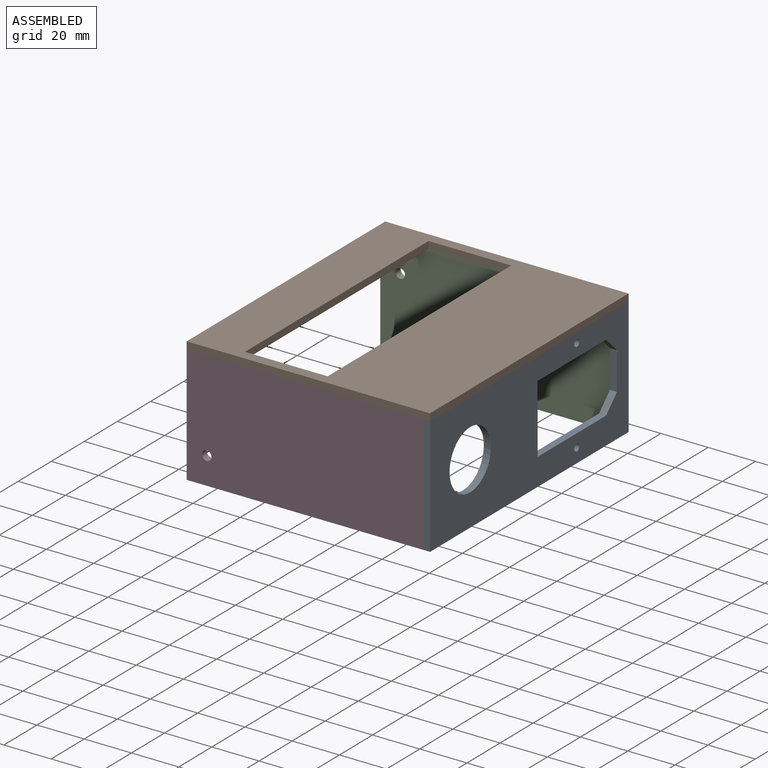
[diagram: assembled view]
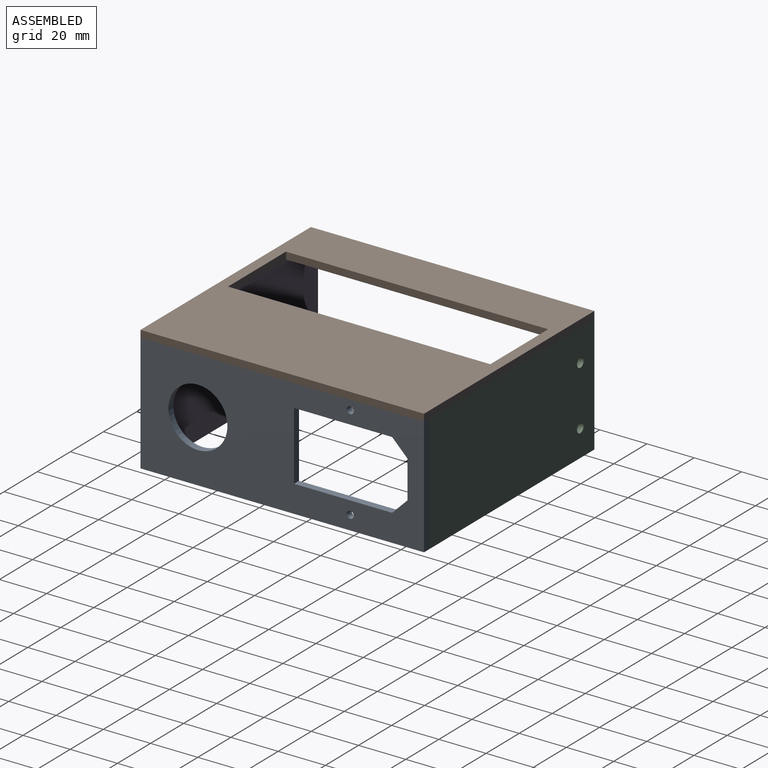
[diagram: assembled view, second angle]
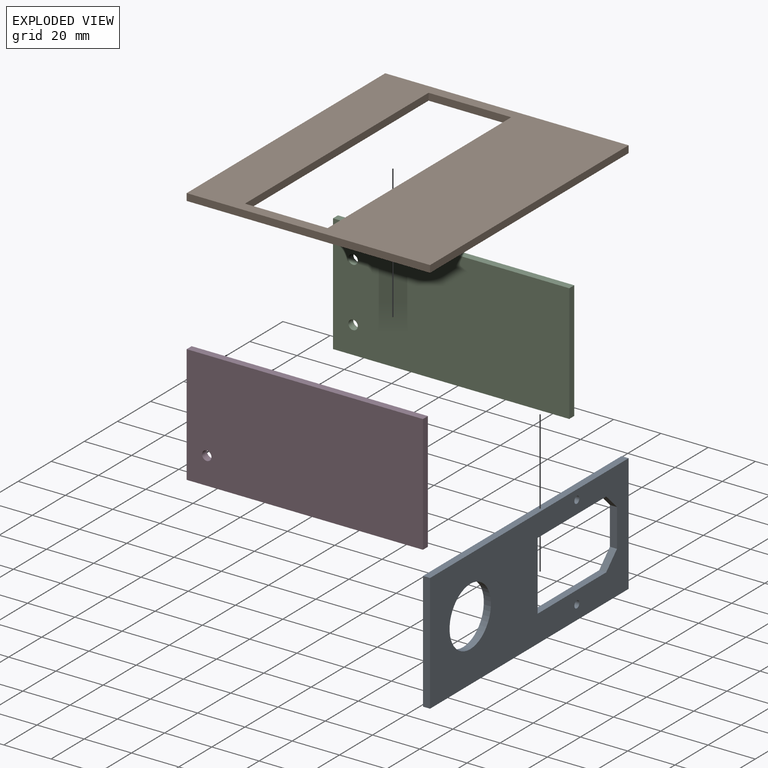
[diagram: exploded view]
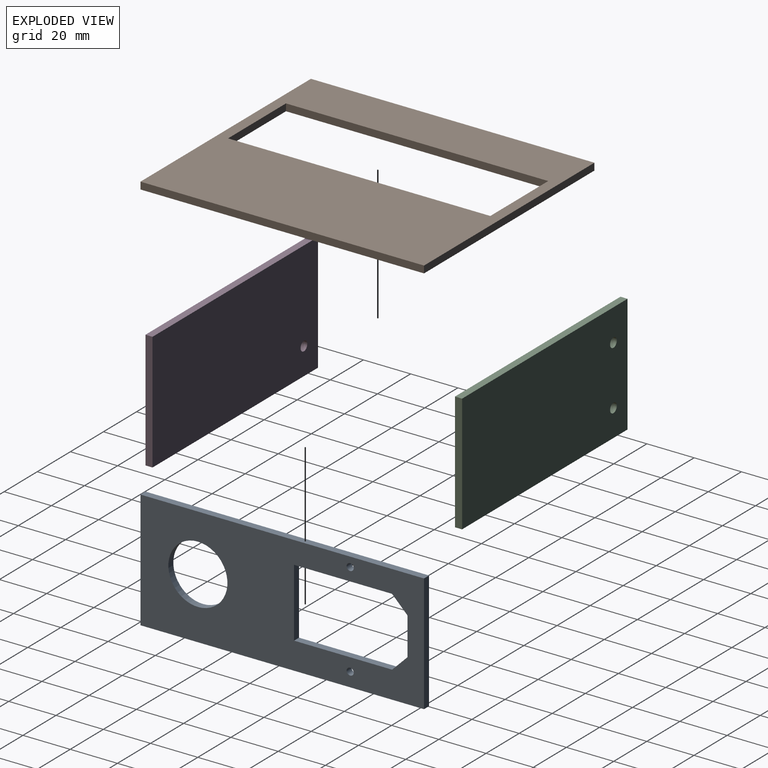
[diagram: exploded view, second angle]
ASSEMBLY  parts=4 mates=3
PART A: 15 faces, bbox 120x3x50 mm
  f0: plane 120x3mm, normal (0,0,1), area 360mm2, adj f1,f12,f13,f14
  f1: plane 50x3mm, normal (-1,0,0), area 150mm2, adj f0,f2,f13,f14
  f2: plane 120x3mm, normal (0,0,-1), area 360mm2, adj f1,f12,f13,f14
  f3: plane 29x3mm, normal (1,0,0), area 87mm2, adj f4,f8,f13,f14
  f4: plane 41.5x3mm, normal (0,0,-1), area 124.5mm2, adj f3,f5,f13,f14
  f5: plane 6.5x6.5mm, normal (-0.71,0,-0.71), area 27.6mm2, adj f4,f6,f13,f14
  f6: plane 16x3mm, normal (-1,0,0), area 48mm2, adj f5,f7,f13,f14
  f7: plane 6.5x6.5mm, normal (-0.71,0,0.71), area 27.6mm2, adj f6,f8,f13,f14
  f8: plane 41.5x3mm, normal (0,0,1), area 124.5mm2, adj f3,f7,f13,f14
  f9: cylinder r=12.5mm len=25mm, axis (0,1,0), area 235.6mm2, adj f13,f14
  f10: cylinder r=1.5mm len=3mm, axis (0,1,0), area 28.3mm2, adj f13,f14
  f11: cylinder r=1.5mm len=3mm, axis (0,1,0), area 28.3mm2, adj f13,f14
  f12: plane 50x3mm, normal (1,0,0), area 150mm2, adj f0,f2,f13,f14
  f13: plane 120x50mm, normal (0,-1,0), area 4145.2mm2, adj f0,f1,f2,f3,f4,f5,f6,f7
  f14: plane 120x50mm, normal (0,1,0), area 4145.2mm2, adj f0,f1,f2,f3,f4,f5,f6,f7
PART B: 10 faces, bbox 120x3x103 mm
  f0: plane 120x3mm, normal (0,0,1), area 360mm2, adj f1,f7,f8,f9
  f1: plane 103x3mm, normal (-1,0,0), area 309mm2, adj f0,f2,f8,f9
  f2: plane 120x3mm, normal (0,0,-1), area 360mm2, adj f1,f7,f8,f9
  f3: plane 35x3mm, normal (1,0,0), area 105mm2, adj f4,f6,f8,f9
  f4: plane 111x3mm, normal (0,0,-1), area 333mm2, adj f3,f5,f8,f9
  f5: plane 35x3mm, normal (-1,0,0), area 105mm2, adj f4,f6,f8,f9
  f6: plane 111x3mm, normal (0,0,1), area 333mm2, adj f3,f5,f8,f9
  f7: plane 103x3mm, normal (1,0,0), area 309mm2, adj f0,f2,f8,f9
  f8: plane 120x103mm, normal (0,-1,0), area 8475mm2, adj f0,f1,f2,f3,f4,f5,f6,f7
  f9: plane 120x103mm, normal (0,1,0), area 8475mm2, adj f0,f1,f2,f3,f4,f5,f6,f7
PART C: 8 faces, bbox 3x100x50 mm
  f0: plane 100x3mm, normal (0,0,1), area 300mm2, adj f1,f5,f6,f7
  f1: plane 50x3mm, normal (0,-1,0), area 150mm2, adj f0,f2,f6,f7
  f2: plane 100x3mm, normal (0,0,-1), area 300mm2, adj f1,f5,f6,f7
  f3: cylinder r=2mm len=4mm, axis (-1,0,0), area 37.7mm2, adj f6,f7
  f4: cylinder r=2mm len=4mm, axis (-1,0,0), area 37.7mm2, adj f6,f7
  f5: plane 50x3mm, normal (0,1,0), area 150mm2, adj f0,f2,f6,f7
  f6: plane 100x50mm, normal (1,0,0), area 4974.9mm2, adj f0,f1,f2,f3,f4,f5
  f7: plane 100x50mm, normal (-1,0,0), area 4974.9mm2, adj f0,f1,f2,f3,f4,f5
PART D: 7 faces, bbox 100x3x50 mm
  f0: plane 100x3mm, normal (0,0,1), area 300mm2, adj f1,f4,f5,f6
  f1: plane 50x3mm, normal (-1,0,0), area 150mm2, adj f0,f2,f5,f6
  f2: plane 100x3mm, normal (0,0,-1), area 300mm2, adj f1,f4,f5,f6
  f3: cylinder r=2mm len=4mm, axis (0,1,0), area 37.7mm2, adj f5,f6
  f4: plane 50x3mm, normal (1,0,0), area 150mm2, adj f0,f2,f5,f6
  f5: plane 100x50mm, normal (0,-1,0), area 4987.4mm2, adj f0,f1,f2,f3,f4
  f6: plane 100x50mm, normal (0,1,0), area 4987.4mm2, adj f0,f1,f2,f3,f4
PLACE A rot(axis=(0,0,1),90deg) t=(44.07,-111.48,5.06)mm
PLACE B rot(axis=(-0.58,-0.58,0.58),120deg) t=(-4.43,-95.31,29.06)mm
PLACE C rot(axis=(0,0,-1),90deg) t=(-12.93,-35.31,4.31)mm
PLACE D t=(-5.93,-152.31,4.06)mm
MATE fastened C.f5 <-> A.f14  axis (1,0,0) through (44.07,-35.31,4.06)mm
MATE fastened D.f4 <-> A.f14  axis (1,0,0) through (44.07,-155.31,4.06)mm
MATE fastened B.f9 <-> A.f0  axis (0,0,-1) through (47.07,-95.31,29.06)mm
